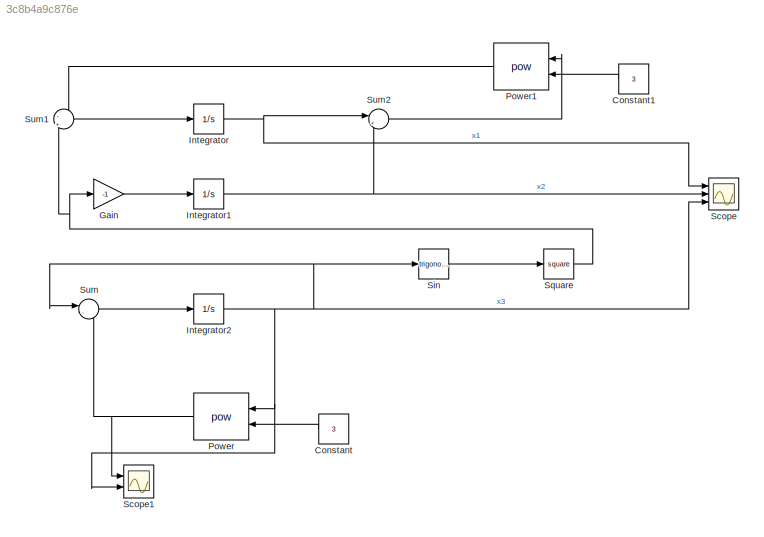
MODEL slx_3c8b4a9c876e
KIND model
CONFIG AbsTol = auto
CONFIG EnableMultiTasking = off
CONFIG FixedStep = auto
CONFIG MaxStep = auto
CONFIG MinStep = auto
CONFIG RelTol = 1e-3
CONFIG SampleTimeConstraint = Unconstrained
CONFIG SolverName = VariableStepAuto
CONFIG StartTime = 0.0
CONFIG StopTime = 200
BLOCK [Constant] Constant
  Value = 3
BLOCK [Constant] Constant1
  Value = 3
BLOCK [Gain] Gain
  Gain = -1
BLOCK [Integrator] Integrator
  InitialCondition = 10
  Ports = [1, 1]
BLOCK [Integrator] Integrator1
  InitialCondition = -10
  Ports = [1, 1]
BLOCK [Integrator] Integrator2
  InitialCondition = 0.3
  Ports = [1, 1]
BLOCK [Math] Power
  Operator = pow
  Ports = [2, 1]
BLOCK [Math] Power1
  Operator = pow
  Ports = [2, 1]
BLOCK [Scope] Scope
  Floating = off
  NumInputPorts = 3
  Ports = [3]
  ScopeSpecificationString = Simulink.scopes.TimeScopeBlockCfg('CurrentConfiguration', extmgr.ConfigurationSet(extmgr.Configuration('Core','General UI',true),extmgr.Configuration('Core','Source UI',true),extmgr.Configuration('Sources','WiredSimulink',true),extmgr.Configuration('Visuals','Time Domain',true,'SerializedDisplays',{struct('MinYLimReal','-10.74503','MaxYLimReal','-9.85673','YLabelReal','','MinYLimMag','0.00000','Ma...<+1410ch>
BLOCK [Scope] Scope1
  Floating = off
  NumInputPorts = 2
  Ports = [2]
  ScopeSpecificationString = Simulink.scopes.TimeScopeBlockCfg('CurrentConfiguration', extmgr.ConfigurationSet(extmgr.Configuration('Core','General UI',true),extmgr.Configuration('Core','Source UI',true),extmgr.Configuration('Sources','WiredSimulink',true,'DataLoggingVariableName','ScopeData1'),extmgr.Configuration('Visuals','Time Domain',true,'SerializedDisplays',{struct('MinYLimReal','-0.04161','MaxYLimReal','-0.02208','YLa...<+1425ch>
BLOCK [Trigonometry] Sin
  Ports = [1, 1]
BLOCK [Math] Square
  Operator = square
  Ports = [1, 1]
BLOCK [Sum] Sum
  Inputs = |-+
  Ports = [2, 1]
BLOCK [Sum] Sum1
  Inputs = -|+
  Ports = [2, 1]
BLOCK [Sum] Sum2
  Inputs = |+-
  Ports = [2, 1]
LINE Constant1:1 -> Power1:2
LINE Constant:1 -> Power:2
LINE Gain:1 -> Integrator1:1
NET Integrator1:1 -> Scope:2, Sum2:2
NET Integrator2:1 -> Power:1, Scope1:2, Scope:3, Sin:1, Sum:1
NET Integrator:1 -> Scope:1, Sum2:1
LINE Power1:1 -> Sum1:1
NET Power:1 -> Scope1:1, Sum:2
LINE Sin:1 -> Square:1
NET Square:1 -> Gain:1, Sum1:2
LINE Sum1:1 -> Integrator:1
LINE Sum2:1 -> Power1:1
LINE Sum:1 -> Integrator2:1
note: NET lines group one-source signal fan-out (src -> all destinations, sorted); 1:1 wires keep LINE
